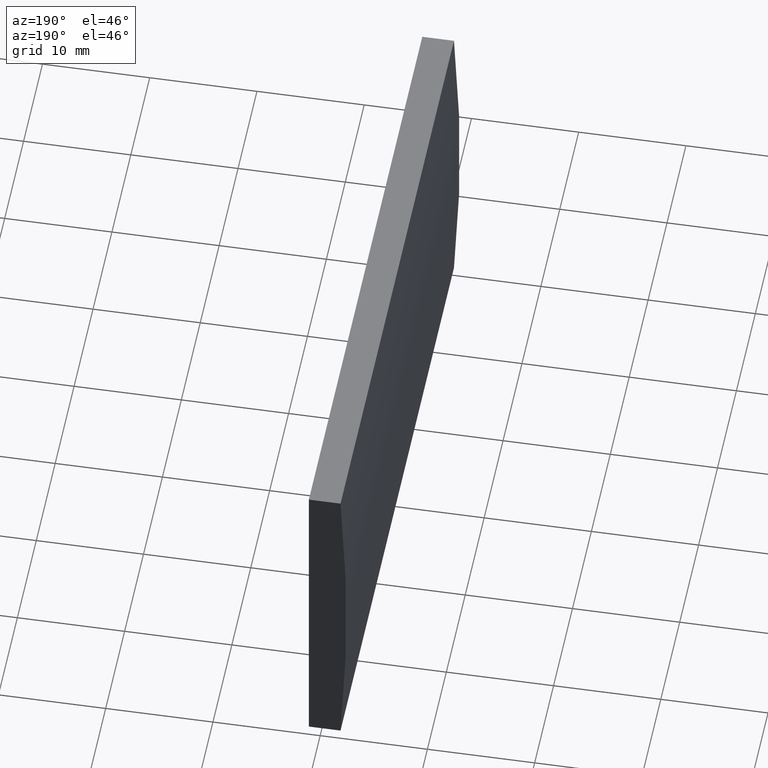
[diagram: clean part render]
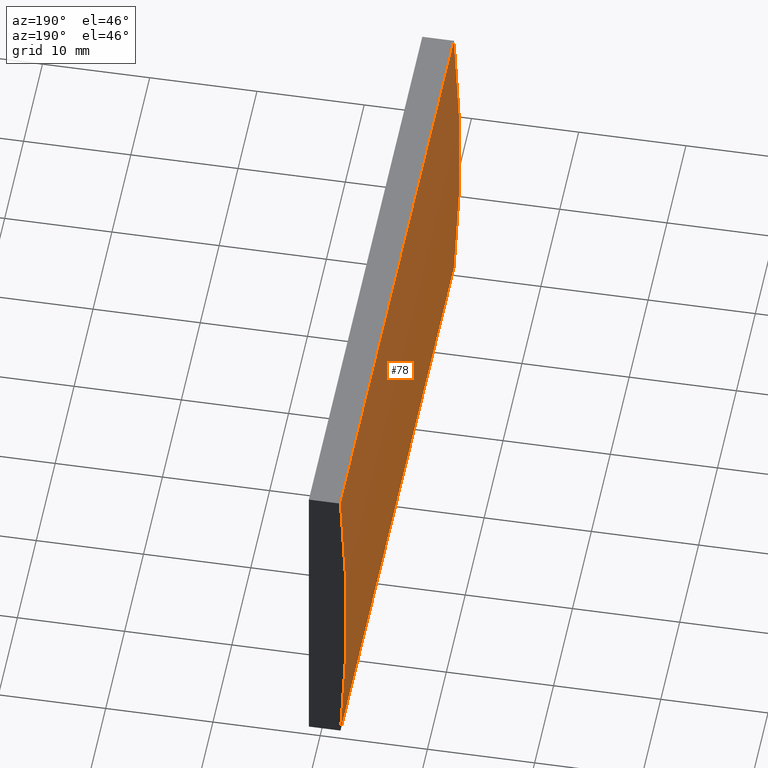
[diagram: same view with one face highlighted and labeled with its STEP entity id]
A machine part, auxiliary view. The second image highlights one B-rep face of the part: STEP entity #78.
In plain terms, the highlighted cylindrical surface (partial cylindrical patch) has radius 206.8 mm, axis along (-0, -1, -0).
Its self-contained STEP definition (entity closure, byte-faithful):
#1 = CARTESIAN_POINT ( 'NONE',  ( -201.9000743854763000, 60.00000000000000000, 15.00000000000000000 ) ) ;
#3 = ORIENTED_EDGE ( 'NONE', *, *, #60, .T. ) ;
#5 = CIRCLE ( 'NONE', #136, 206.8000000000000400 ) ;
#10 = EDGE_LOOP ( 'NONE', ( #3, #35, #145, #193 ) ) ;
#11 = DIRECTION ( 'NONE',  ( 0.0000000000000000000, 0.0000000000000000000, -1.000000000000000000 ) ) ;
#14 = LINE ( 'NONE', #195, #72 ) ;
#27 = CARTESIAN_POINT ( 'NONE',  ( -201.9000743854763000, 60.00000000000000000, -15.00000000000000000 ) ) ;
#28 = VECTOR ( 'NONE', #182, 1000.000000000000000 ) ;
#33 = DIRECTION ( 'NONE',  ( 0.0000000000000000000, 1.000000000000000000, 0.0000000000000000000 ) ) ;
#35 = ORIENTED_EDGE ( 'NONE', *, *, #62, .F. ) ;
#37 = FACE_OUTER_BOUND ( 'NONE', #10, .T. ) ;
#38 = DIRECTION ( 'NONE',  ( 0.0000000000000000000, 1.000000000000000000, 0.0000000000000000000 ) ) ;
#56 = VERTEX_POINT ( 'NONE', #157 ) ;
#60 = EDGE_CURVE ( 'NONE', #118, #56, #5, .T. ) ;
#62 = EDGE_CURVE ( 'NONE', #97, #56, #69, .T. ) ;
#65 = DIRECTION ( 'NONE',  ( -0.0000000000000000000, -1.000000000000000000, -0.0000000000000000000 ) ) ;
#67 = DIRECTION ( 'NONE',  ( 0.0000000000000000000, 0.0000000000000000000, 1.000000000000000000 ) ) ;
#69 = LINE ( 'NONE', #94, #28 ) ;
#72 = VECTOR ( 'NONE', #126, 1000.000000000000000 ) ;
#75 = CARTESIAN_POINT ( 'NONE',  ( -201.9000743854763000, 0.0000000000000000000, -15.00000000000000000 ) ) ;
#78 = ADVANCED_FACE ( 'NONE', ( #37 ), #108, .T. ) ;
#83 = AXIS2_PLACEMENT_3D ( 'NONE', #137, #33, #67 ) ;
#94 = CARTESIAN_POINT ( 'NONE',  ( -201.9000743854763000, 60.00000000000000000, 15.00000000000000000 ) ) ;
#97 = VERTEX_POINT ( 'NONE', #1 ) ;
#108 = CYLINDRICAL_SURFACE ( 'NONE', #143, 206.8000000000000400 ) ;
#118 = VERTEX_POINT ( 'NONE', #75 ) ;
#126 = DIRECTION ( 'NONE',  ( -0.0000000000000000000, -1.000000000000000000, -0.0000000000000000000 ) ) ;
#133 = VERTEX_POINT ( 'NONE', #27 ) ;
#136 = AXIS2_PLACEMENT_3D ( 'NONE', #177, #38, #181 ) ;
#137 = CARTESIAN_POINT ( 'NONE',  ( 4.355204334851265500, 60.00000000000000000, 4.286263797015675000E-017 ) ) ;
#143 = AXIS2_PLACEMENT_3D ( 'NONE', #166, #65, #11 ) ;
#145 = ORIENTED_EDGE ( 'NONE', *, *, #158, .F. ) ;
#151 = EDGE_CURVE ( 'NONE', #133, #118, #14, .T. ) ;
#157 = CARTESIAN_POINT ( 'NONE',  ( -201.9000743854763000, 0.0000000000000000000, 15.00000000000000000 ) ) ;
#158 = EDGE_CURVE ( 'NONE', #133, #97, #183, .T. ) ;
#166 = CARTESIAN_POINT ( 'NONE',  ( 4.355204334851265500, 60.00000000000000000, 4.286263797015675000E-017 ) ) ;
#177 = CARTESIAN_POINT ( 'NONE',  ( 4.355204334851265500, 0.0000000000000000000, 4.286263797015675000E-017 ) ) ;
#181 = DIRECTION ( 'NONE',  ( 0.0000000000000000000, 0.0000000000000000000, 1.000000000000000000 ) ) ;
#182 = DIRECTION ( 'NONE',  ( -0.0000000000000000000, -1.000000000000000000, -0.0000000000000000000 ) ) ;
#183 = CIRCLE ( 'NONE', #83, 206.8000000000000400 ) ;
#193 = ORIENTED_EDGE ( 'NONE', *, *, #151, .T. ) ;
#195 = CARTESIAN_POINT ( 'NONE',  ( -201.9000743854763000, 60.00000000000000000, -15.00000000000000000 ) ) ;